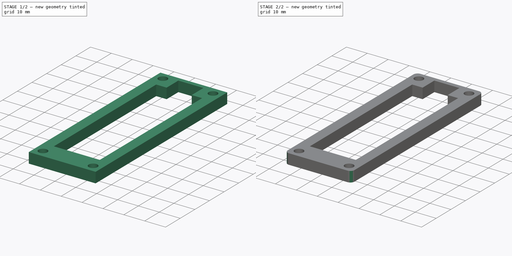
[diagram: build sequence overview — one tinted view per stage of 2, left to right]
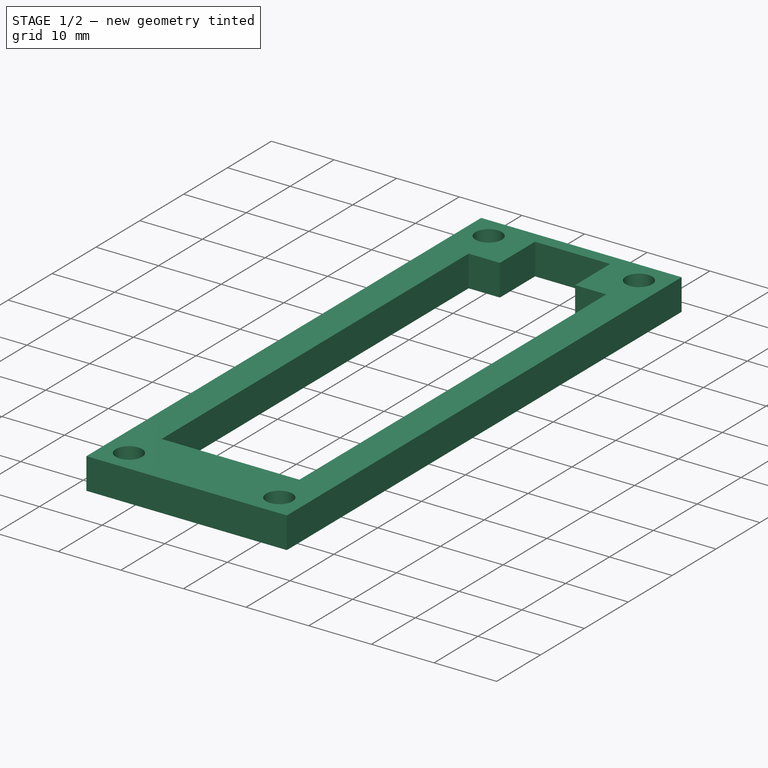
[diagram: stage 1 of 2 — iso view after this stage's code; geometry added in this stage tinted green]
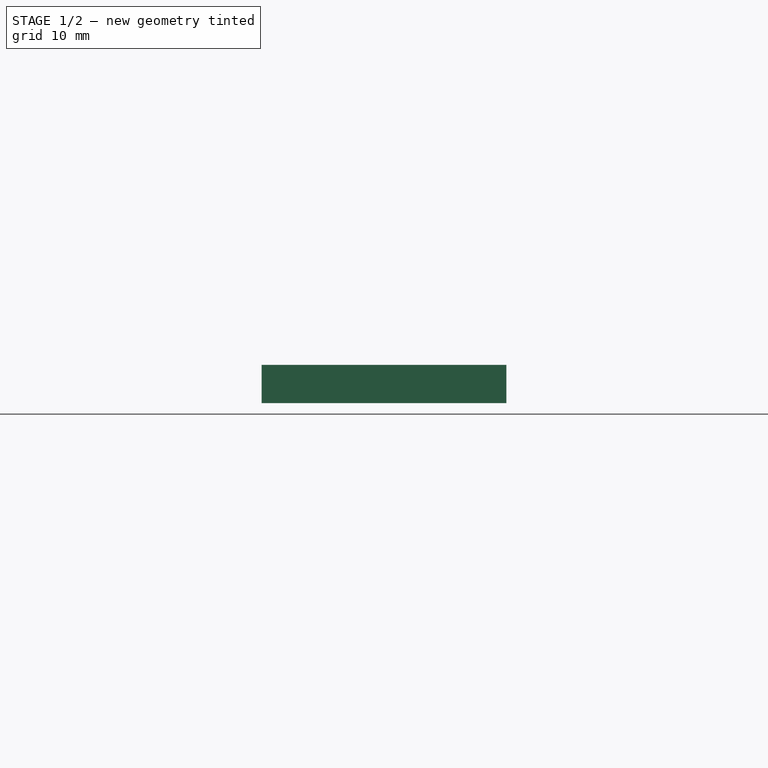
[diagram: stage 1 of 2 — front view after this stage's code; geometry added in this stage tinted green]
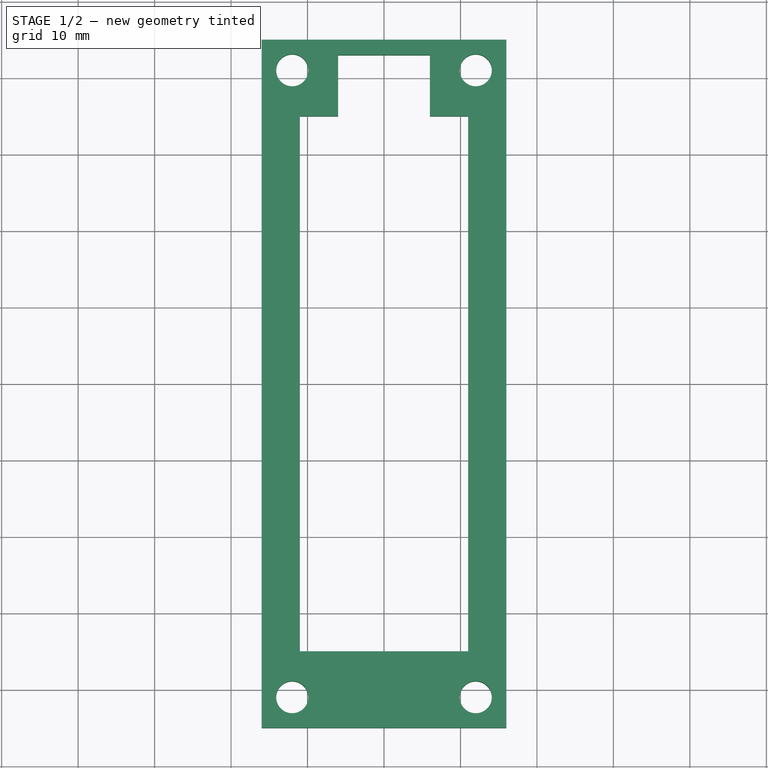
[diagram: stage 1 of 2 — top view after this stage's code; geometry added in this stage tinted green]
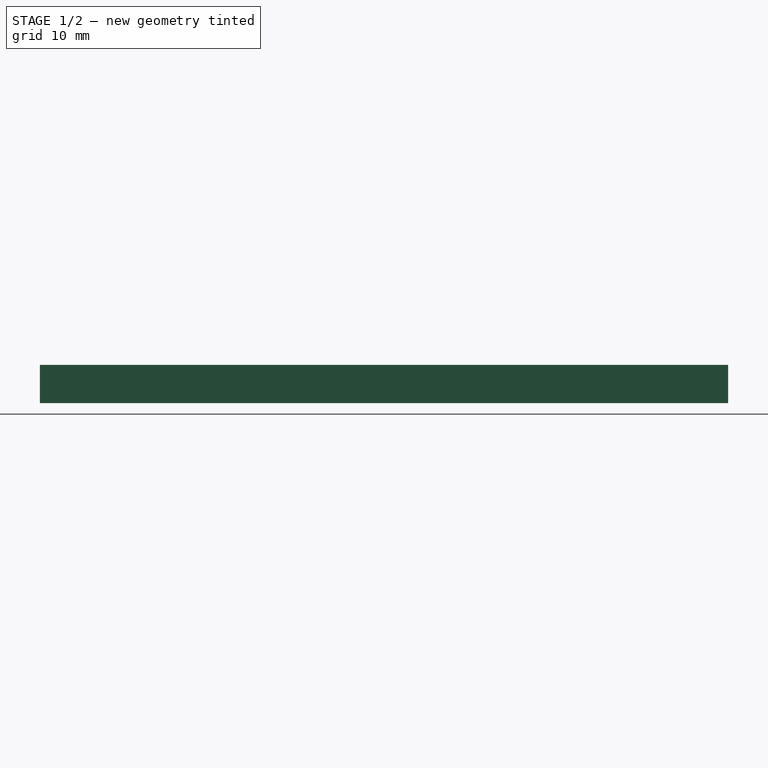
[diagram: stage 1 of 2 — right view after this stage's code; geometry added in this stage tinted green]
FCSTD DOCUMENT  (FreeCAD 0.20R)
Label: middle_26650_case
License: All rights reserved
LicenseURL: http://en.wikipedia.org/wiki/All_rights_reserved
objects: Sketcher::SketchObject×1, Part::Extrusion×1, Part::Fillet×1
note: 3 computed .brp shape members not serialized (recipe doc carries the construction recipe); baked Part::Feature solids carry a one-line shape summary decoded from their .brp

FEATURE [Sketcher::SketchObject] Sketch
  FullyConstrained = true
  sketch-geometry (16):
    g0: LineSegment StartX=-16 StartY=45 StartZ=0 EndX=16 EndY=45 EndZ=0
    g1: LineSegment StartX=16 StartY=45 StartZ=0 EndX=16 EndY=-45 EndZ=0
    g2: LineSegment StartX=16 StartY=-45 StartZ=0 EndX=-16 EndY=-45 EndZ=0
    g3: LineSegment StartX=-16 StartY=-45 StartZ=0 EndX=-16 EndY=45 EndZ=0
    g4: Circle CenterX=-12 CenterY=41 CenterZ=0 NormalX=0 NormalY=0 NormalZ=1 AngleXU=0 Radius=2.1
    g5: Circle CenterX=12 CenterY=41 CenterZ=0 NormalX=0 NormalY=0 NormalZ=1 AngleXU=0 Radius=2.1
    g6: Circle CenterX=-12 CenterY=-41 CenterZ=0 NormalX=0 NormalY=0 NormalZ=1 AngleXU=0 Radius=2.1
    g7: Circle CenterX=12 CenterY=-41 CenterZ=0 NormalX=0 NormalY=0 NormalZ=1 AngleXU=0 Radius=2.1
    g8: LineSegment StartX=11 StartY=35 StartZ=0 EndX=11 EndY=-35 EndZ=0
    g9: LineSegment StartX=11 StartY=-35 StartZ=0 EndX=-11 EndY=-35 EndZ=0
    g10: LineSegment StartX=-11 StartY=-35 StartZ=0 EndX=-11 EndY=35 EndZ=0
    g11: LineSegment StartX=-6 StartY=43 StartZ=0 EndX=6 EndY=43 EndZ=0
    g12: LineSegment StartX=-6 StartY=35 StartZ=0 EndX=-6 EndY=43 EndZ=0
    g13: LineSegment StartX=-6 StartY=35 StartZ=0 EndX=-11 EndY=35 EndZ=0
    g14: LineSegment StartX=11 StartY=35 StartZ=0 EndX=6 EndY=35 EndZ=0
    g15: LineSegment StartX=6 StartY=43 StartZ=0 EndX=6 EndY=35 EndZ=0
  constraints (47):
    c: Coincident(g0,g1)
    c: Coincident(g1,g2)
    c: Coincident(g2,g3)
    c: Coincident(g3,g0)
    c: Horizontal(g0)
    c: Horizontal(g2)
    c: Vertical(g1)
    c: Vertical(g3)
    c: DistanceY(g6,g4) = 82
    c: DistanceY(g7,g6) = 0
    c: DistanceY(g4,g5) = 0
    c: DistanceX(g4,g5) = 24
    c: DistanceX(g5,g7) = 0
    c: DistanceX(g6,g4) = 0
    c: Diameter(g5) = 4.2
    c: Equal(g5,g4)
    c: Equal(g7,g5)
    c: Equal(g7,g6)
    c: DistanceX(g0,g0) = 32
    c: DistanceY(g1,g1) = 90
    c: DistanceY(g4,g0) = 4
    c: DistanceX(g0,g4) = 4
    c: Symmetric(g0,g1,g-1)
    c: Coincident(g8,g9)
    c: Coincident(g9,g10)
    c: Horizontal(g9)
    c: Vertical(g8)
    c: Vertical(g10)
    c: DistanceX(g0,g10) = 5
    c: DistanceY(g2,g9) = 10
    c: Coincident(g12,g11)
    c: Horizontal(g11)
    c: Vertical(g12)
    c: DistanceX(g11,g11) = 12
    c: DistanceX(g-1,g11) = 6
    c: DistanceY(g10,g0) = 10
    c: DistanceY(g11,g0) = 2
    c: Coincident(g13,g12)
    c: Coincident(g13,g10)
    c: Horizontal(g13)
    c: Coincident(g14,g8)
    c: Horizontal(g14)
    c: Coincident(g15,g11)
    c: Vertical(g15)
    c: Coincident(g14,g15)
    c: DistanceY(g14,g12) = 0
    c: DistanceX(g8,g0) = 5
FEATURE [Part::Extrusion] Extrude
  Base = -> Sketch
  Dir = (0,0,1)
  DirMode = 2
  FaceMakerClass = Part::FaceMakerBullseye
  LengthFwd = 5
  LengthRev = 0
  Solid = true
  Symmetric = false
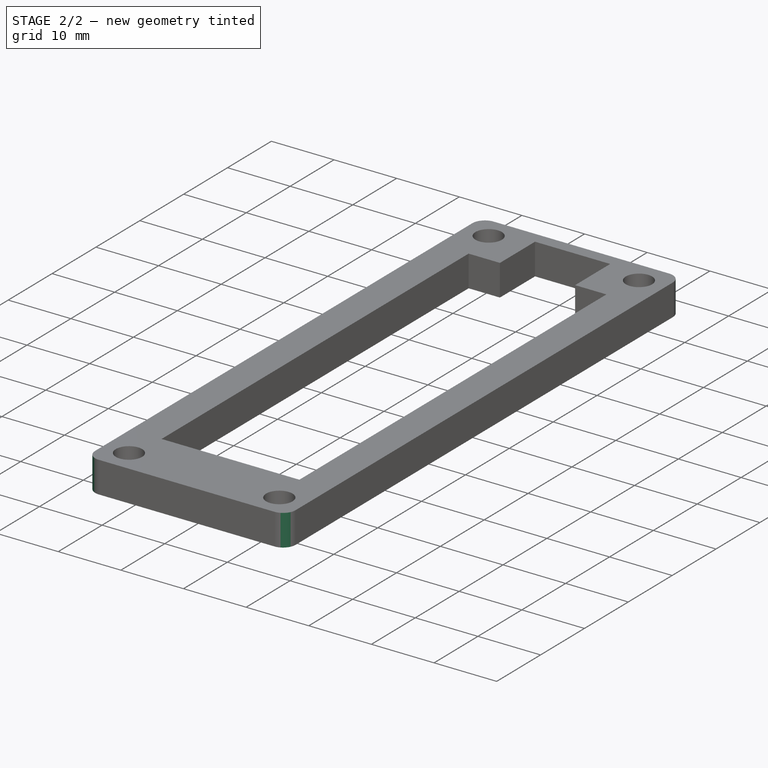
[diagram: stage 2 of 2 — iso view after this stage's code; geometry added in this stage tinted green]
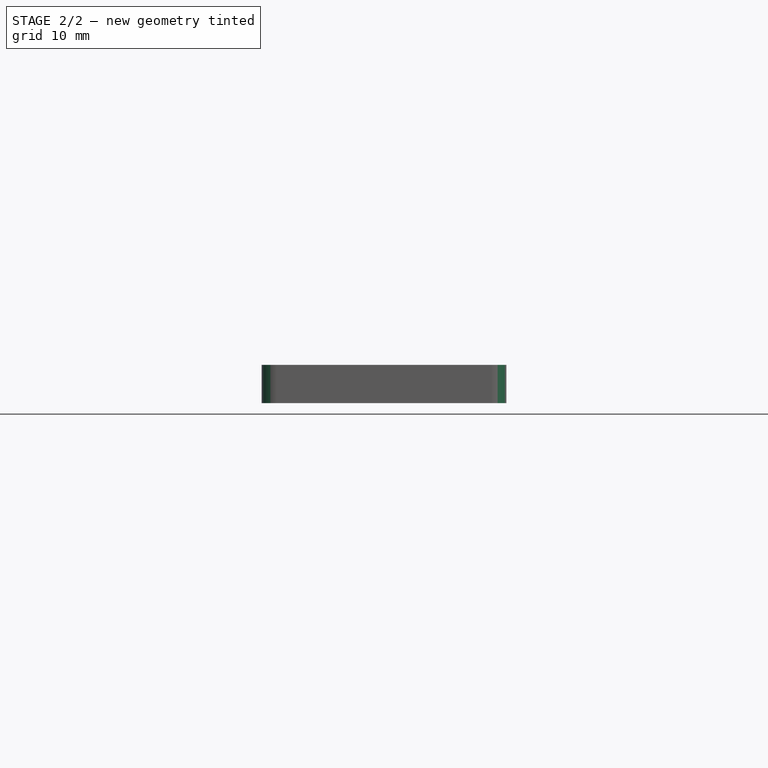
[diagram: stage 2 of 2 — front view after this stage's code; geometry added in this stage tinted green]
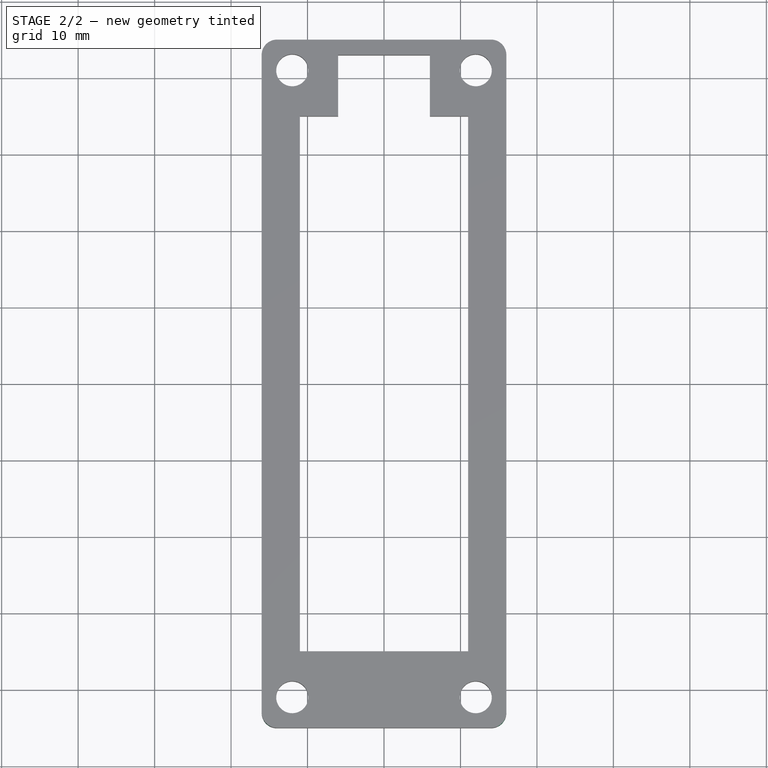
[diagram: stage 2 of 2 — top view after this stage's code; geometry added in this stage tinted green]
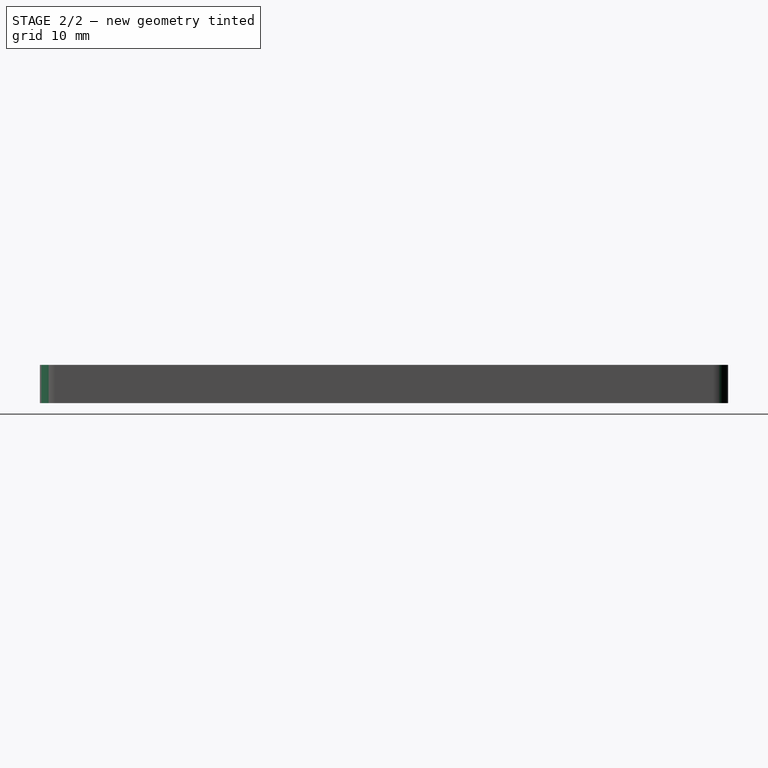
[diagram: stage 2 of 2 — right view after this stage's code; geometry added in this stage tinted green]
FEATURE [Part::Fillet] Fillet
  Base = -> Extrude
  Edges = 4 edges r=2: [Edge1,Edge2,Edge5,Edge8]
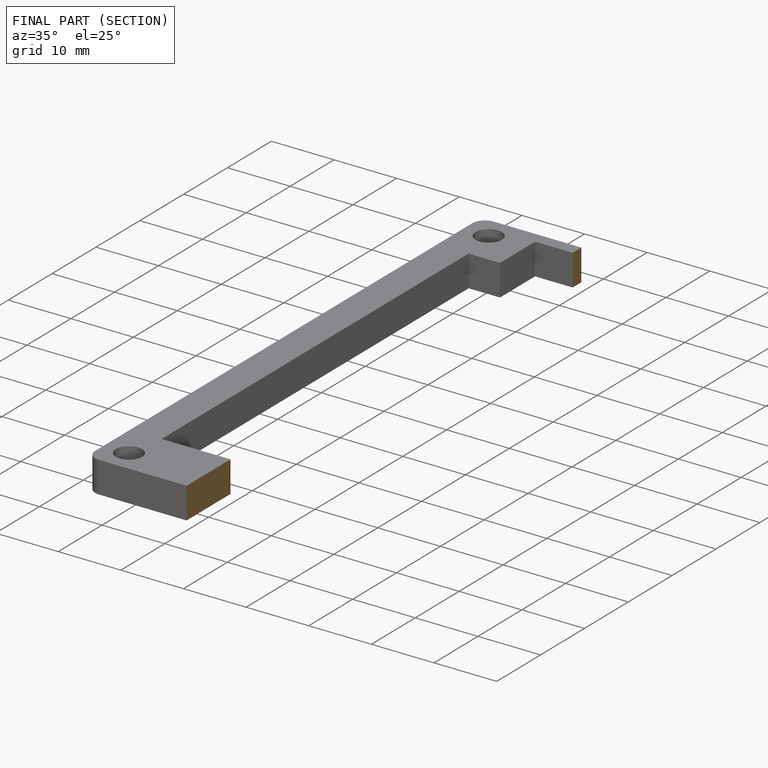
[diagram: finished part — half-section view (interior)]
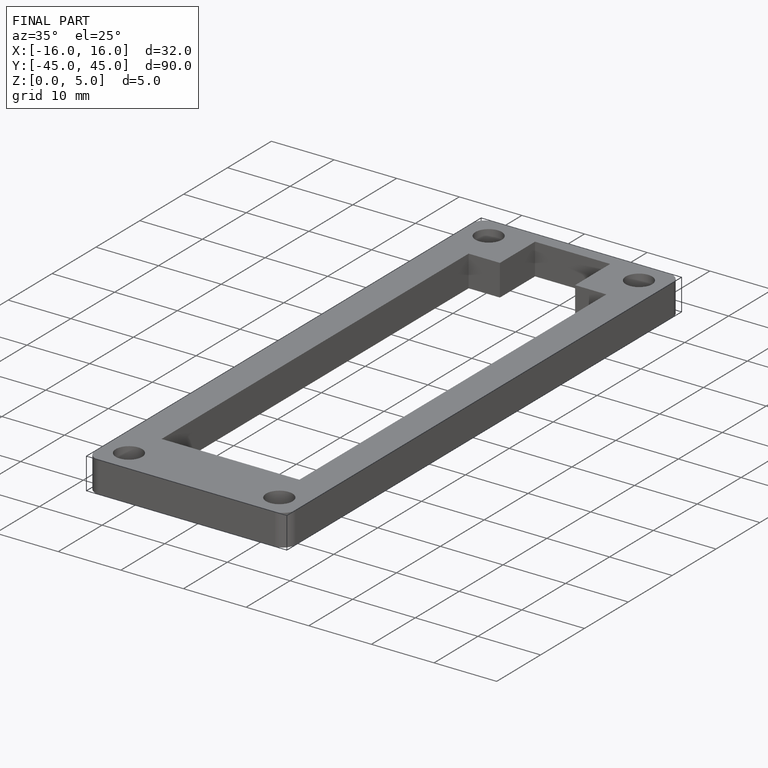
[diagram: finished part — iso view with bounding-box wireframe]
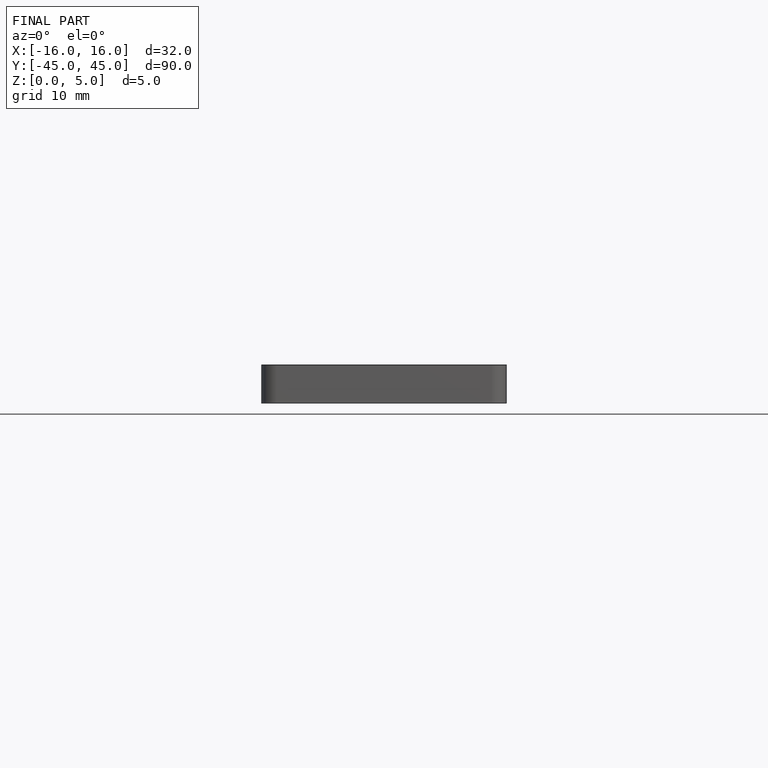
[diagram: finished part — front view with bounding-box wireframe]
